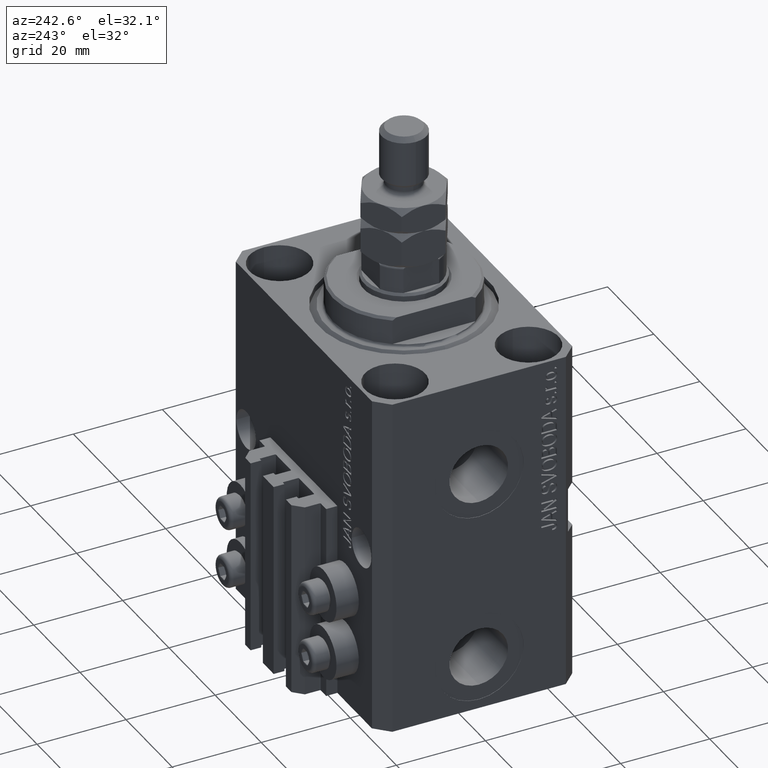
[diagram: clean part render]
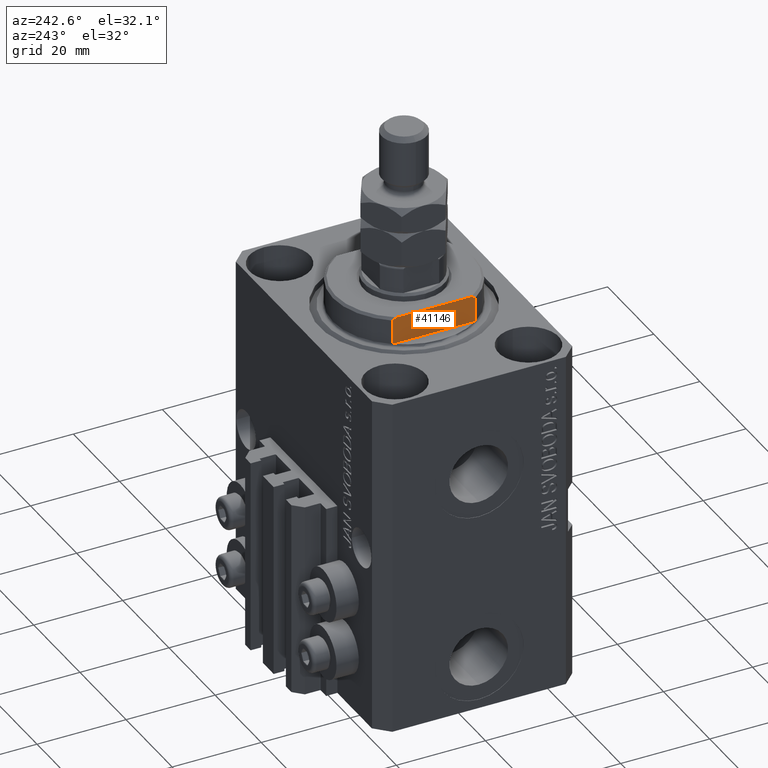
[diagram: same view with one face highlighted and labeled with its STEP entity id]
A machine part, auxiliary view. The second image highlights one B-rep face of the part: STEP entity #41146.
In plain terms, the highlighted planar face has unit normal (-1, 0, 0).
Its self-contained STEP definition (entity closure, byte-faithful):
#1737 = B_SPLINE_CURVE_WITH_KNOTS ( 'NONE', 3,
 ( #18898, #29870, #34109, #34836 ),
 .UNSPECIFIED., .F., .F.,
 ( 4, 4 ),
 ( 0.03031084603841415620, 0.03132841702658697297 ),
 .UNSPECIFIED. ) ;
#3110 = DIRECTION ( 'NONE',  ( -0.000000000000000000, -0.000000000000000000, 1.000000000000000000 ) ) ;
#4271 = CARTESIAN_POINT ( 'NONE',  ( 13.00000000000000000, -43.08131845707602992, -0.4999999999999995559 ) ) ;
#5368 = ORIENTED_EDGE ( 'NONE', *, *, #15677, .F. ) ;
#6195 = VECTOR ( 'NONE', #12050, 1000.000000000000000 ) ;
#7106 = CARTESIAN_POINT ( 'NONE',  ( 13.00000000000000000, -43.08131845707602992, -0.4999999999999995559 ) ) ;
#9475 = EDGE_LOOP ( 'NONE', ( #18136, #29753, #32179, #5368, #38083, #11352 ) ) ;
#9667 = DIRECTION ( 'NONE',  ( 0.000000000000000000, -1.000000000000000000, -0.000000000000000000 ) ) ;
#9797 = EDGE_CURVE ( 'NONE', #44621, #40722, #44023, .T. ) ;
#9924 = EDGE_CURVE ( 'NONE', #31398, #44621, #1737, .T. ) ;
#11014 = CARTESIAN_POINT ( 'NONE',  ( 13.00000000000000000, 8.440971508067137918, -6.500000000000000000 ) ) ;
#11343 = CARTESIAN_POINT ( 'NONE',  ( 13.00000000000000000, -8.440971508067137918, -6.500000000000000000 ) ) ;
#11352 = ORIENTED_EDGE ( 'NONE', *, *, #9924, .F. ) ;
#12050 = DIRECTION ( 'NONE',  ( 0.000000000000000000, 0.000000000000000000, -1.000000000000000000 ) ) ;
#12081 = EDGE_CURVE ( 'NONE', #25704, #14551, #41232, .T. ) ;
#12285 = VECTOR ( 'NONE', #3110, 1000.000000000000000 ) ;
#13237 = B_SPLINE_CURVE_WITH_KNOTS ( 'NONE', 3,
 ( #11343, #23766, #19278, #19771 ),
 .UNSPECIFIED., .F., .F.,
 ( 4, 4 ),
 ( 0.04915043732154494860, 0.05017913261572036487 ),
 .UNSPECIFIED. ) ;
#14551 = VERTEX_POINT ( 'NONE', #36641 ) ;
#15075 = CARTESIAN_POINT ( 'NONE',  ( 13.00000000000000000, 9.327379053088813876, -6.500000000000000000 ) ) ;
#15677 = EDGE_CURVE ( 'NONE', #40722, #20294, #13237, .T. ) ;
#17611 = CARTESIAN_POINT ( 'NONE',  ( 13.00000000000000000, -43.08131845707602992, -6.500000000000000000 ) ) ;
#18136 = ORIENTED_EDGE ( 'NONE', *, *, #23992, .T. ) ;
#18898 = CARTESIAN_POINT ( 'NONE',  ( 13.00000000000000000, 9.327379053088916905, -6.000000000000021316 ) ) ;
#19278 = CARTESIAN_POINT ( 'NONE',  ( 13.00000000000000000, -9.034292940839595332, -6.170857829009071871 ) ) ;
#19771 = CARTESIAN_POINT ( 'NONE',  ( 13.00000000000000000, -9.327379053088815652, -6.000000000000030198 ) ) ;
#20294 = VERTEX_POINT ( 'NONE', #25736 ) ;
#23766 = CARTESIAN_POINT ( 'NONE',  ( 13.00000000000000000, -8.738941625005656633, -6.337731789204291033 ) ) ;
#23992 = EDGE_CURVE ( 'NONE', #31398, #25704, #48202, .T. ) ;
#25704 = VERTEX_POINT ( 'NONE', #46570 ) ;
#25736 = CARTESIAN_POINT ( 'NONE',  ( 13.00000000000000000, -9.327379053088815652, -6.000000000000030198 ) ) ;
#29753 = ORIENTED_EDGE ( 'NONE', *, *, #12081, .T. ) ;
#29870 = CARTESIAN_POINT ( 'NONE',  ( 13.00000000000000000, 9.034035639617135516, -6.171007825636153576 ) ) ;
#30233 = AXIS2_PLACEMENT_3D ( 'NONE', #4271, #31186, #46376 ) ;
#31186 = DIRECTION ( 'NONE',  ( 1.000000000000000000, 0.000000000000000000, -0.000000000000000000 ) ) ;
#31398 = VERTEX_POINT ( 'NONE', #46019 ) ;
#32179 = ORIENTED_EDGE ( 'NONE', *, *, #35759, .T. ) ;
#34109 = CARTESIAN_POINT ( 'NONE',  ( 13.00000000000000000, 8.738667591047022398, -6.337881022290552835 ) ) ;
#34836 = CARTESIAN_POINT ( 'NONE',  ( 13.00000000000000000, 8.440971508067137918, -6.500000000000000000 ) ) ;
#35759 = EDGE_CURVE ( 'NONE', #14551, #20294, #46413, .T. ) ;
#36641 = CARTESIAN_POINT ( 'NONE',  ( 13.00000000000000000, -9.327379053088815652, -0.4999999999999995559 ) ) ;
#38083 = ORIENTED_EDGE ( 'NONE', *, *, #9797, .F. ) ;
#38899 = FACE_OUTER_BOUND ( 'NONE', #9475, .T. ) ;
#40722 = VERTEX_POINT ( 'NONE', #48688 ) ;
#41146 = ADVANCED_FACE ( 'NONE', ( #38899 ), #47119, .T. ) ;
#41232 = LINE ( 'NONE', #7106, #48248 ) ;
#44023 = LINE ( 'NONE', #17611, #47410 ) ;
#44621 = VERTEX_POINT ( 'NONE', #11014 ) ;
#45720 = DIRECTION ( 'NONE',  ( 0.000000000000000000, -1.000000000000000000, -0.000000000000000000 ) ) ;
#46019 = CARTESIAN_POINT ( 'NONE',  ( 13.00000000000000000, 9.327379053088916905, -6.000000000000021316 ) ) ;
#46180 = CARTESIAN_POINT ( 'NONE',  ( 13.00000000000000000, -9.327379053088813876, -6.500000000000000000 ) ) ;
#46376 = DIRECTION ( 'NONE',  ( -0.000000000000000000, 0.000000000000000000, -1.000000000000000000 ) ) ;
#46413 = LINE ( 'NONE', #46180, #6195 ) ;
#46570 = CARTESIAN_POINT ( 'NONE',  ( 13.00000000000000000, 9.327379053088815652, -0.4999999999999995559 ) ) ;
#47119 = PLANE ( 'NONE',  #30233 ) ;
#47410 = VECTOR ( 'NONE', #9667, 1000.000000000000000 ) ;
#48202 = LINE ( 'NONE', #15075, #12285 ) ;
#48248 = VECTOR ( 'NONE', #45720, 1000.000000000000000 ) ;
#48688 = CARTESIAN_POINT ( 'NONE',  ( 13.00000000000000000, -8.440971508067137918, -6.500000000000000000 ) ) ;